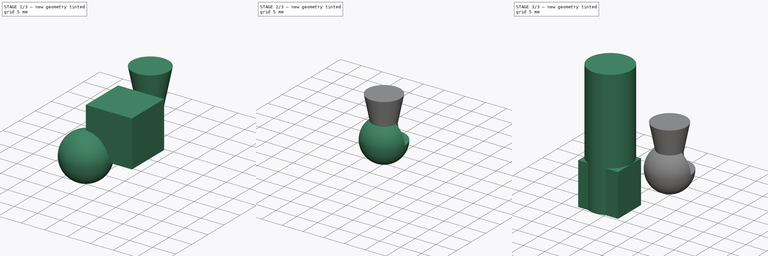
[diagram: build sequence overview — one tinted view per stage of 3, left to right]
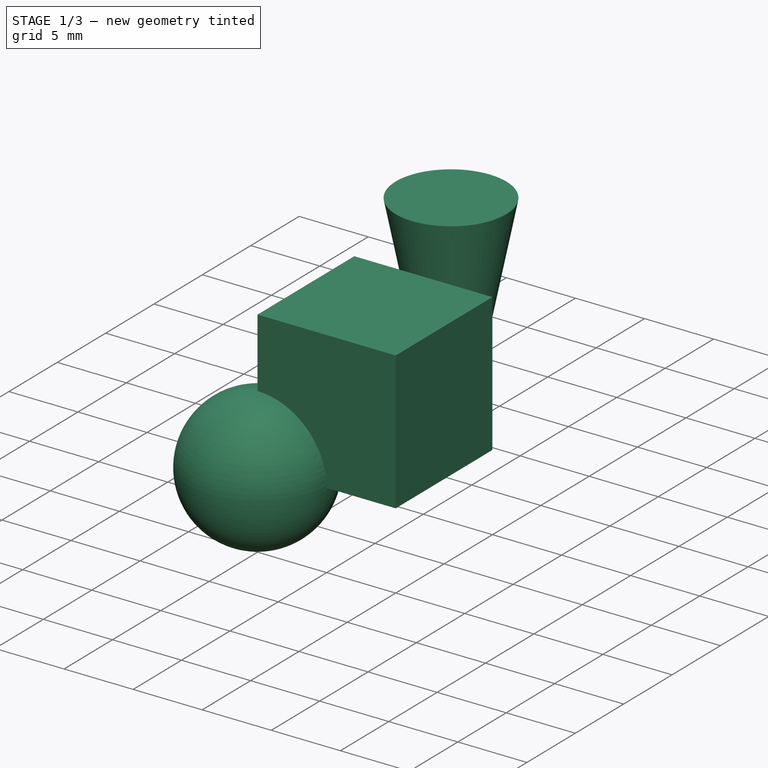
[diagram: stage 1 of 3 — iso view after this stage's code; geometry added in this stage tinted green]
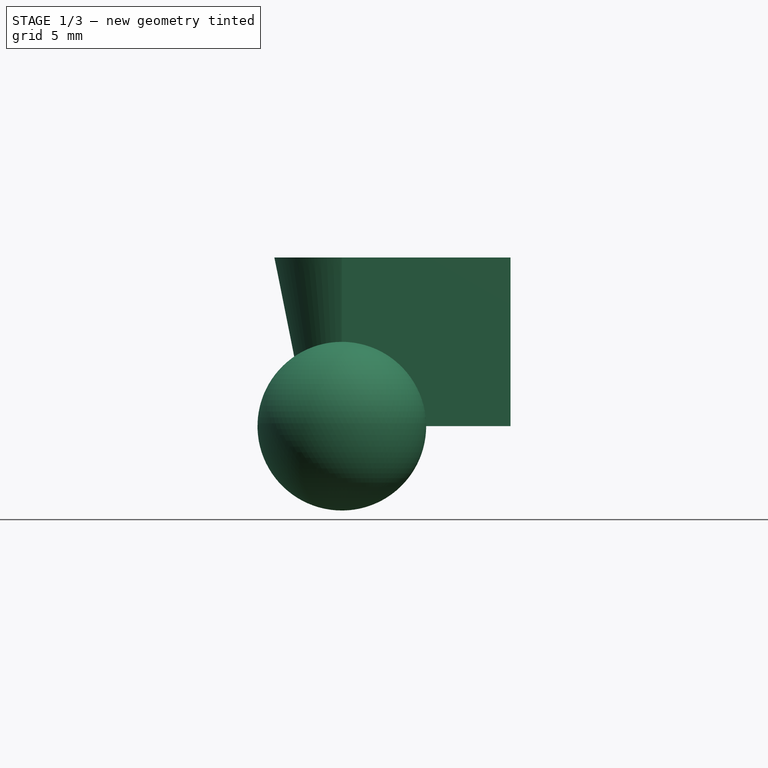
[diagram: stage 1 of 3 — front view after this stage's code; geometry added in this stage tinted green]
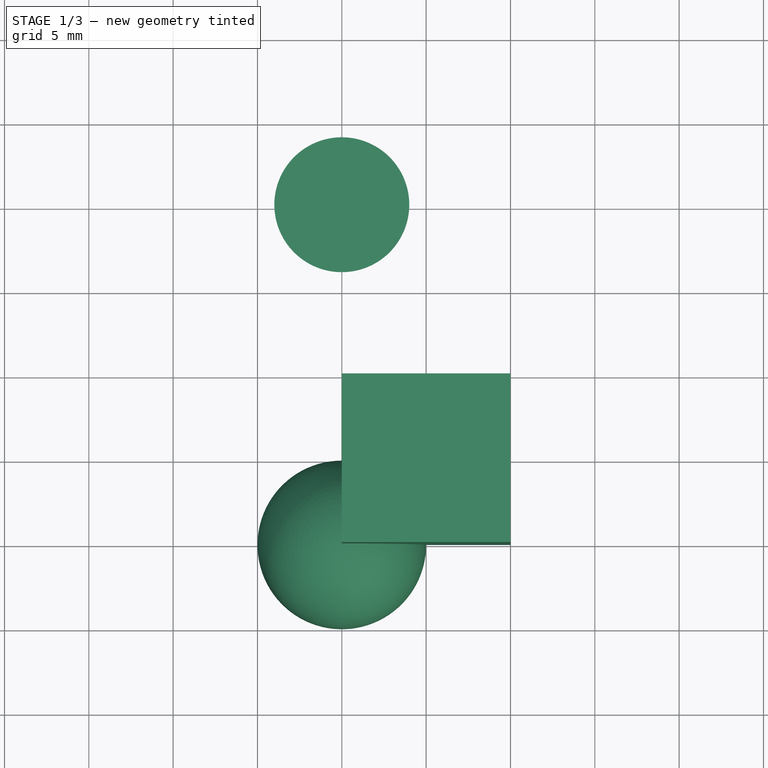
[diagram: stage 1 of 3 — top view after this stage's code; geometry added in this stage tinted green]
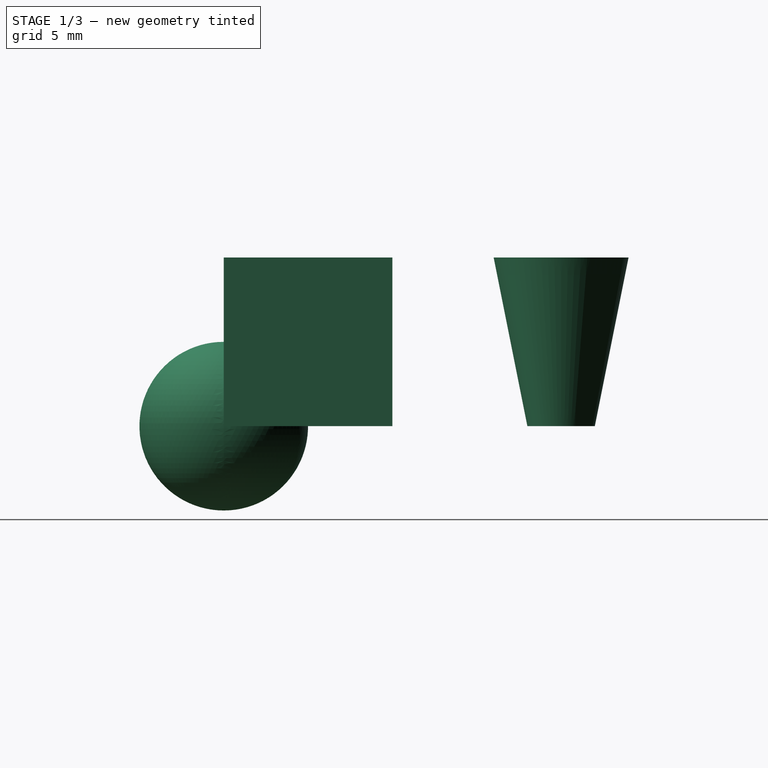
[diagram: stage 1 of 3 — right view after this stage's code; geometry added in this stage tinted green]
FCSTD DOCUMENT  (FreeCAD 0.18R14722 (Git))
Label: PDPCHierarchy_18
License: All rights reserved
LicenseURL: http://en.wikipedia.org/wiki/All_rights_reserved
objects: App::Part×5, Sketcher::SketchObject×3, PartDesign::Pad×3, PartDesign::Body×3, Part::Sphere×1, Part::Box×1, Part::Cut×1, Part::Cone×1, Part::MultiFuse×1
note: 17 computed .brp shape members not serialized (recipe doc carries the construction recipe); baked Part::Feature solids carry a one-line shape summary decoded from their .brp

FEATURE [PartDesign::Body] Body001
  Group = -> [Sketch001,Pad001]
  Origin = -> Origin002
  Tip = -> Pad001
FEATURE [App::Part] Part001  label="child1"
  Group = -> [Body001]
  License = CC BY 3.0
  LicenseURL = http://creativecommons.org/licenses/by/3.0/
  Origin = -> Origin003
FEATURE [App::Part] Part002  label="parent"
  Group = -> [Part001,Part]
  License = CC BY 3.0
  LicenseURL = http://creativecommons.org/licenses/by/3.0/
  Origin = -> Origin004
FEATURE [Part::Sphere] Sphere
  Angle1 = -90
  Angle2 = 90
  Angle3 = 360
  AttacherType = Attacher::AttachEngine3D
  Radius = 5
FEATURE [Part::Box] Box  label="Cube"
  AttacherType = Attacher::AttachEngine3D
  Height = 10
  Length = 10
  Width = 10
FEATURE [PartDesign::Body] Body002  label="1030Pin"
  Group = -> [Sketch002,Pad002]
  Origin = -> Origin005
  Tip = -> Pad002
FEATURE [Part::Cone] Cone
  Angle = 360
  AttacherType = Attacher::AttachEngine3D
  Height = 10
  Placement = pos=(0,20,0) rot=(0,0,1;0rad)
  Radius1 = 2
  Radius2 = 4
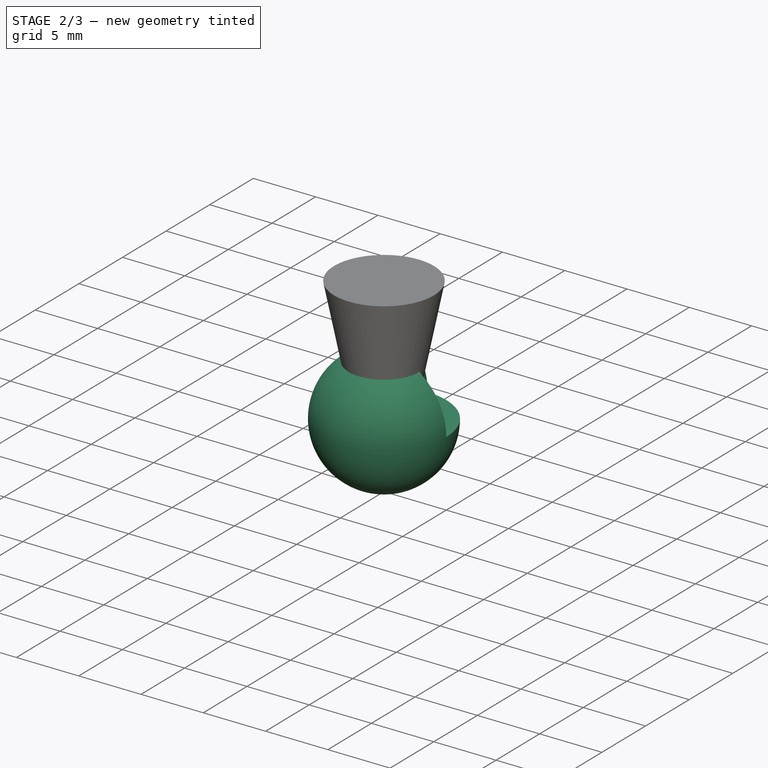
[diagram: stage 2 of 3 — iso view after this stage's code; geometry added in this stage tinted green]
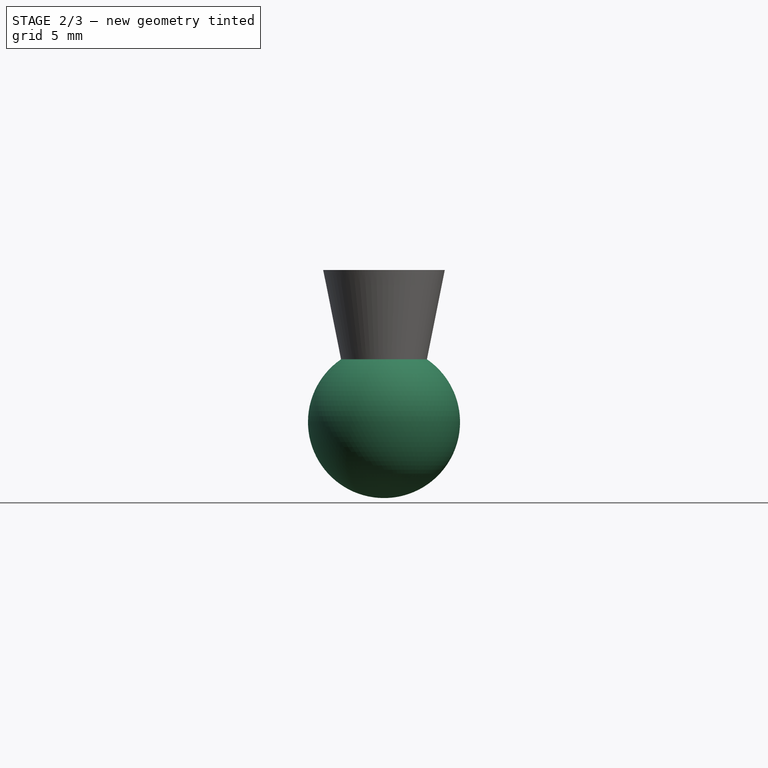
[diagram: stage 2 of 3 — front view after this stage's code; geometry added in this stage tinted green]
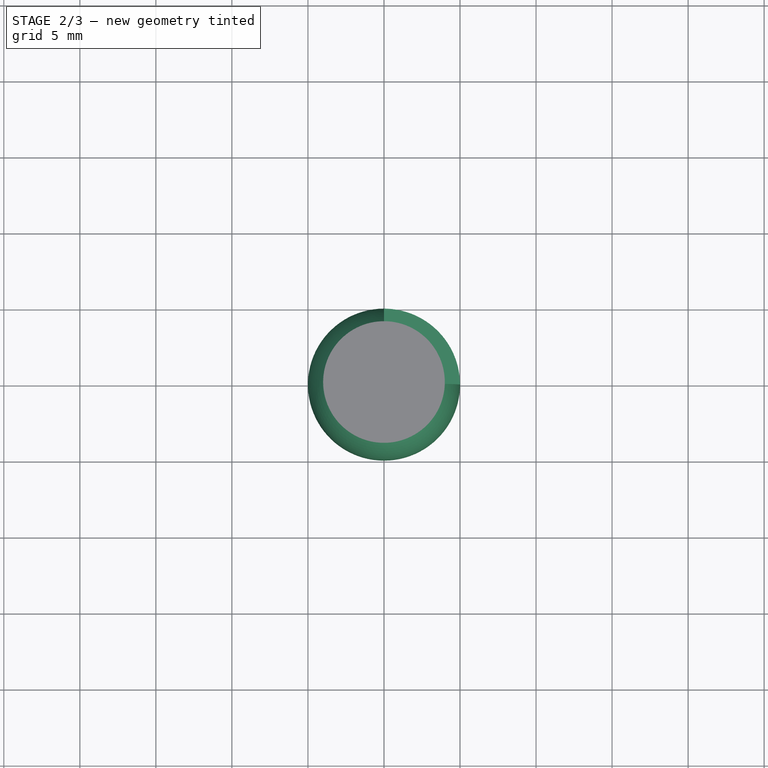
[diagram: stage 2 of 3 — top view after this stage's code; geometry added in this stage tinted green]
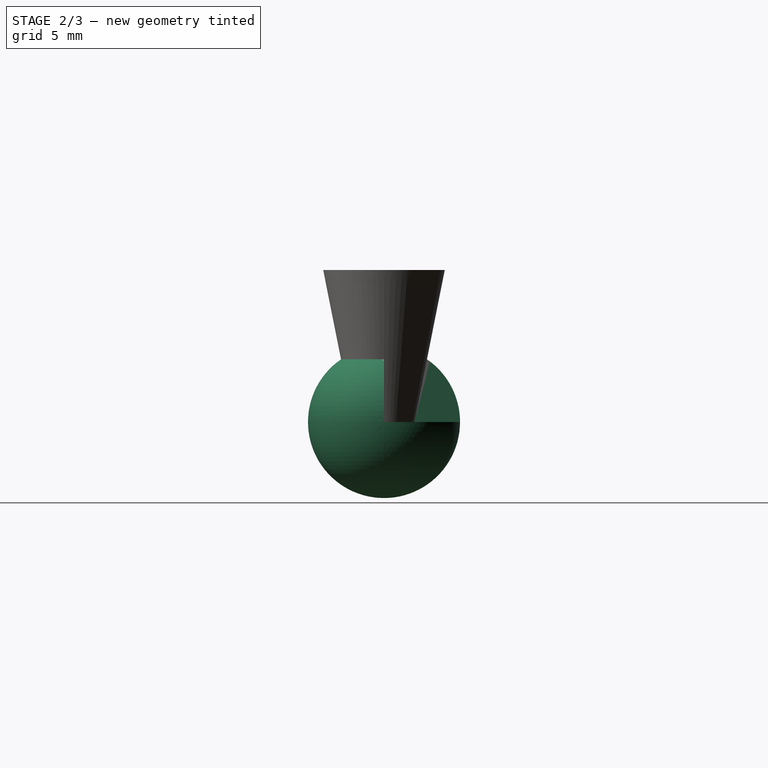
[diagram: stage 2 of 3 — right view after this stage's code; geometry added in this stage tinted green]
FEATURE [Part::Cut] Cut
  Base = -> Sphere
  Placement = pos=(0,20,0) rot=(0,0,1;0rad)
  Tool = -> Box
FEATURE [Part::MultiFuse] Fusion
  Shapes = -> [Cone,Cut]
FEATURE [App::Part] Part003
  Group = -> [Sphere,Box,Cut,Cone,Fusion]
  License = CC BY 3.0
  LicenseURL = http://creativecommons.org/licenses/by/3.0/
  Origin = -> Origin006
FEATURE [App::Part] Part004
  Group = -> [Part003]
  License = CC BY 3.0
  LicenseURL = http://creativecommons.org/licenses/by/3.0/
  Origin = -> Origin007
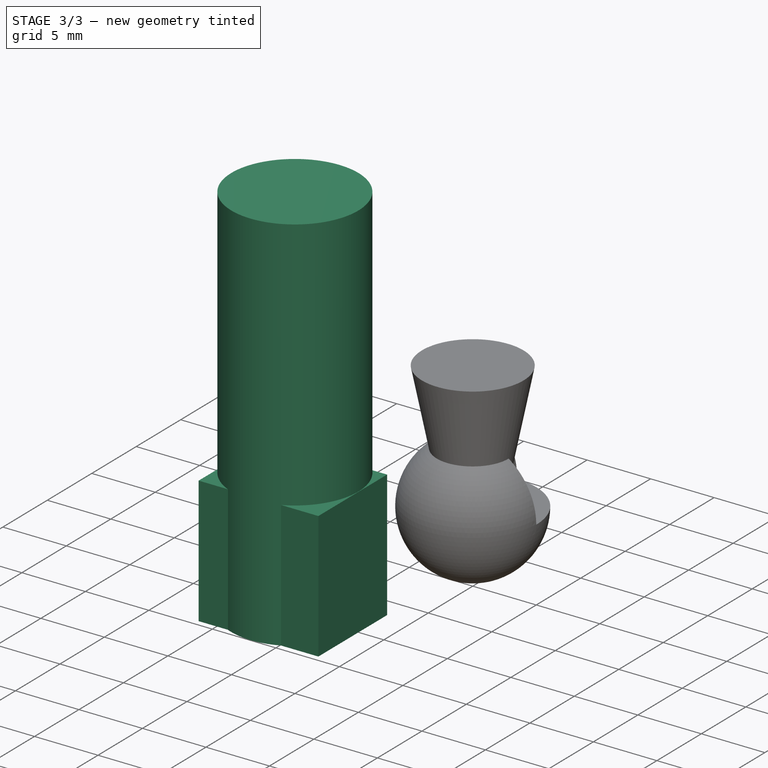
[diagram: stage 3 of 3 — iso view after this stage's code; geometry added in this stage tinted green]
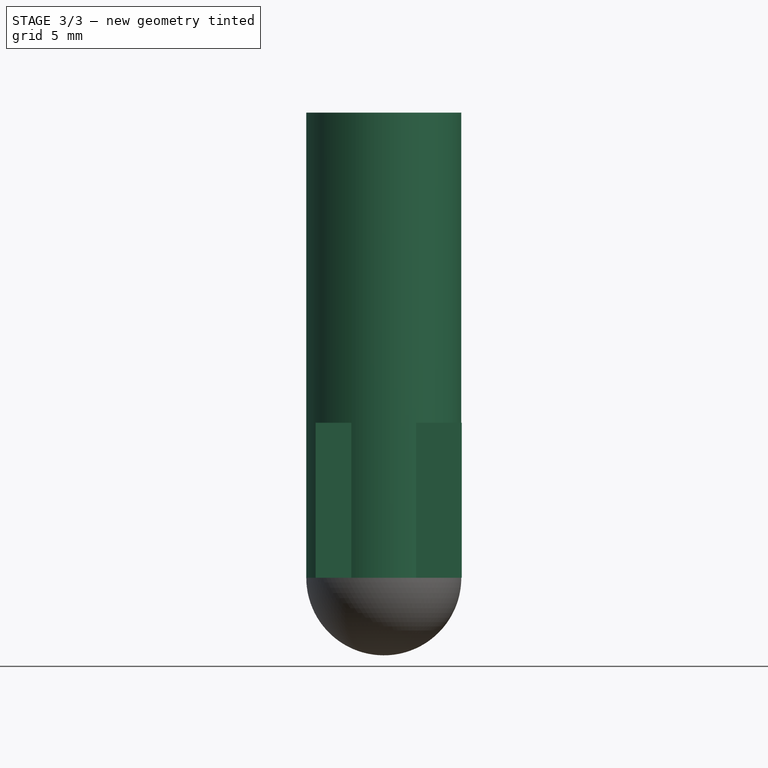
[diagram: stage 3 of 3 — front view after this stage's code; geometry added in this stage tinted green]
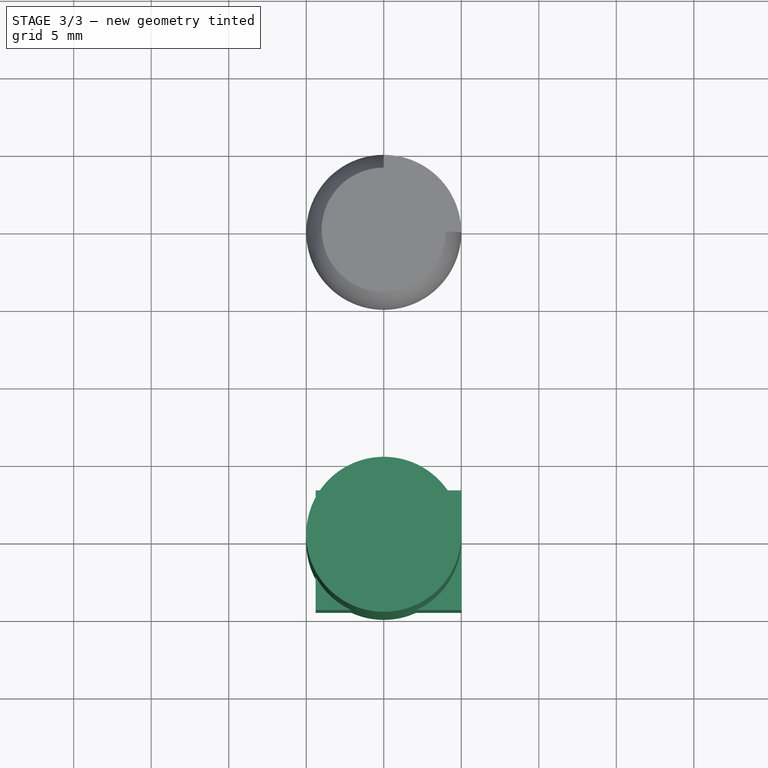
[diagram: stage 3 of 3 — top view after this stage's code; geometry added in this stage tinted green]
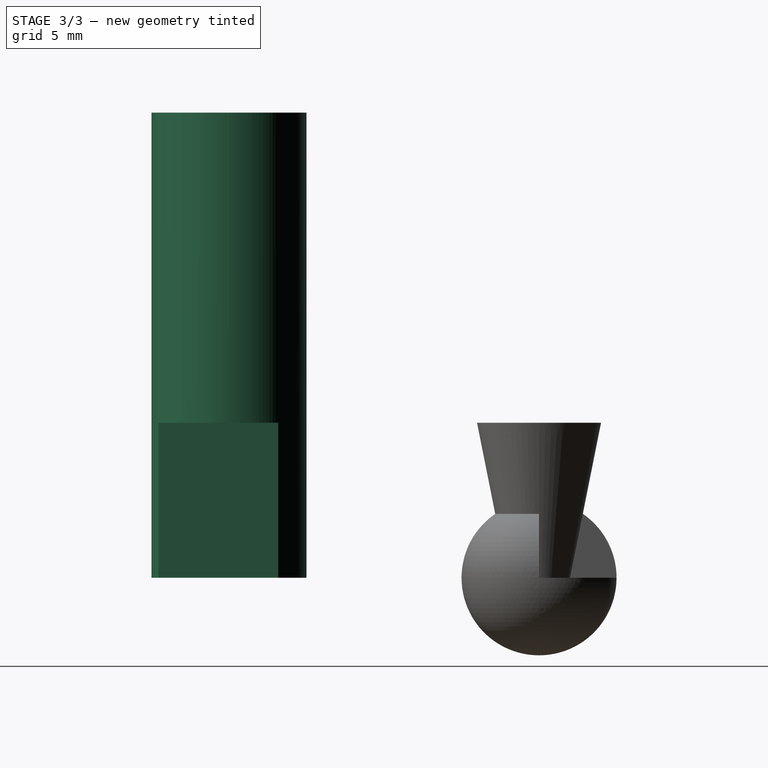
[diagram: stage 3 of 3 — right view after this stage's code; geometry added in this stage tinted green]
FEATURE [Sketcher::SketchObject] Sketch
  MapMode = 5
  Support = -> [XY_Plane]
  sketch-geometry (4):
    g0: LineSegment StartX=-4.39381 StartY=3.18392 StartZ=0 EndX=5.03059 EndY=3.18392 EndZ=0
    g1: LineSegment StartX=5.03059 StartY=3.18392 StartZ=0 EndX=5.03059 EndY=-4.54239 EndZ=0
    g2: LineSegment StartX=5.03059 StartY=-4.54239 StartZ=0 EndX=-4.39381 EndY=-4.54239 EndZ=0
    g3: LineSegment StartX=-4.39381 StartY=-4.54239 StartZ=0 EndX=-4.39381 EndY=3.18392 EndZ=0
  constraints (12):
    c: Coincident(g0,g1)
    c: Coincident(g1,g2)
    c: Coincident(g2,g3)
    c: Coincident(g3,g0)
    c: Horizontal(g0)
    c: Horizontal(g2)
    c: Vertical(g1)
    c: Vertical(g3)
    c: DistanceX(g0) = -4.39381
    c: DistanceY(g0) = 3.18392
    c: DistanceY(g2) = -4.54239
    c: DistanceX(g0) = 5.03059
FEATURE [PartDesign::Pad] Pad
  Length = 10
  Length2 = 100
  Profile = -> Sketch
  Refine = true
  Type = 0
FEATURE [PartDesign::Body] Body
  Group = -> [Sketch,Pad]
  Origin = -> Origin
  Tip = -> Pad
FEATURE [App::Part] Part  label="child2"
  Group = -> [Body]
  License = CC BY 3.0
  LicenseURL = http://creativecommons.org/licenses/by/3.0/
  Origin = -> Origin001
  Placement = pos=(20,0,0) rot=(0,0,1;0rad)
FEATURE [Sketcher::SketchObject] Sketch001
  MapMode = 5
  Support = -> [XY_Plane002]
  sketch-geometry (4):
    g0: LineSegment StartX=-4.39381 StartY=3.18392 StartZ=0 EndX=5.03059 EndY=3.18392 EndZ=0
    g1: LineSegment StartX=5.03059 StartY=3.18392 StartZ=0 EndX=5.03059 EndY=-4.54239 EndZ=0
    g2: LineSegment StartX=5.03059 StartY=-4.54239 StartZ=0 EndX=-4.39381 EndY=-4.54239 EndZ=0
    g3: LineSegment StartX=-4.39381 StartY=-4.54239 StartZ=0 EndX=-4.39381 EndY=3.18392 EndZ=0
  constraints (12):
    c: Coincident(g0,g1)
    c: Coincident(g1,g2)
    c: Coincident(g2,g3)
    c: Coincident(g3,g0)
    c: Horizontal(g0)
    c: Horizontal(g2)
    c: Vertical(g1)
    c: Vertical(g3)
    c: DistanceX(g0) = -4.39381
    c: DistanceY(g0) = 3.18392
    c: DistanceY(g2) = -4.54239
    c: DistanceX(g0) = 5.03059
FEATURE [PartDesign::Pad] Pad001
  Length = 10
  Length2 = 100
  Profile = -> Sketch001
  Refine = true
  Type = 0
FEATURE [Sketcher::SketchObject] Sketch002
  MapMode = 5
  Support = -> [XY_Plane005]
  sketch-geometry (1):
    g0: Circle CenterX=0 CenterY=0 CenterZ=0 NormalX=0 NormalY=0 NormalZ=1 AngleXU=0 Radius=5
  constraints (2):
    c: Coincident(g0,g-1)
    c: Radius(g0) = 5
FEATURE [PartDesign::Pad] Pad002
  Length = 30
  Length2 = 100
  Profile = -> Sketch002
  Type = 0
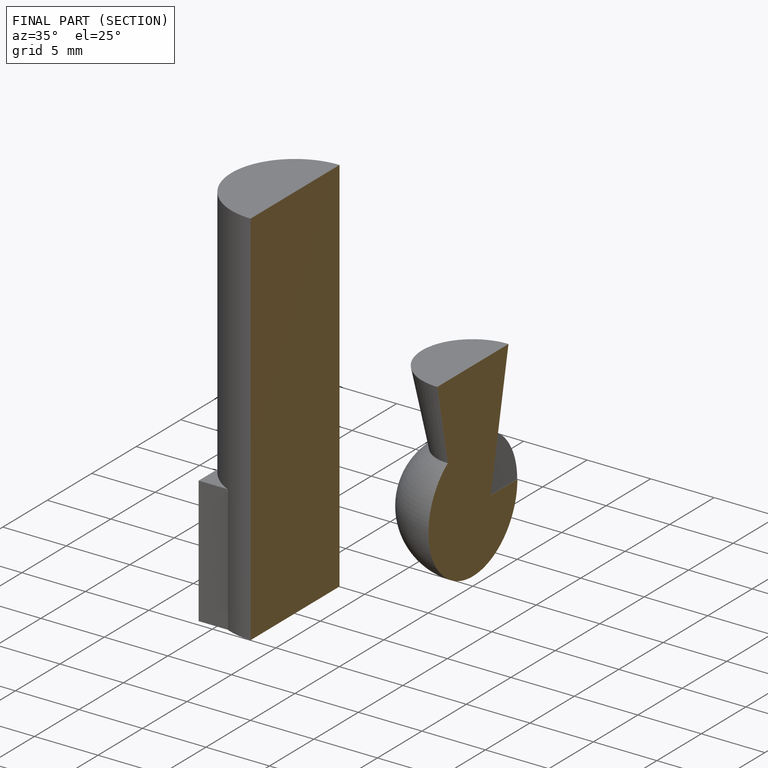
[diagram: finished part — half-section view (interior)]
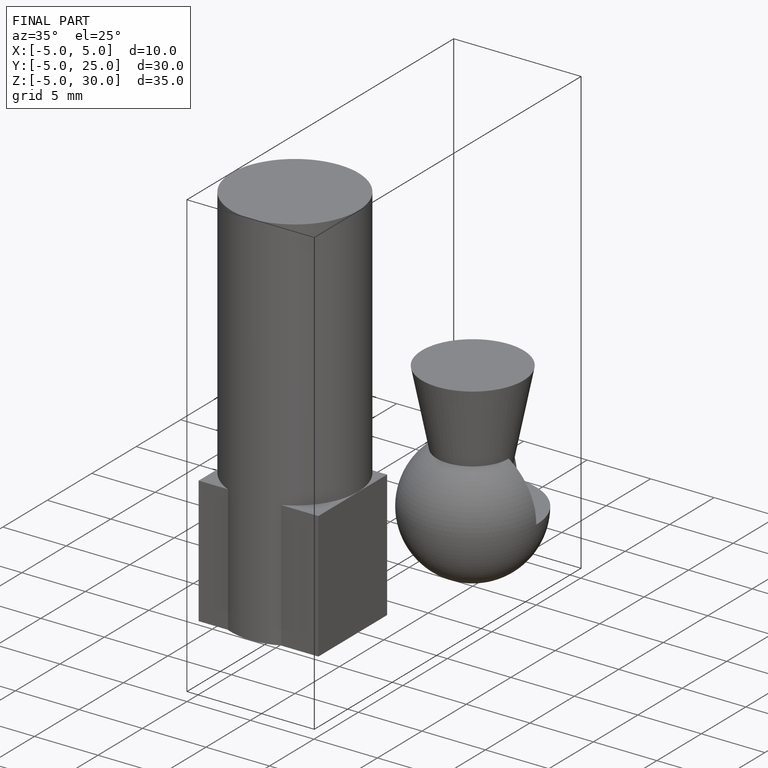
[diagram: finished part — iso view with bounding-box wireframe]
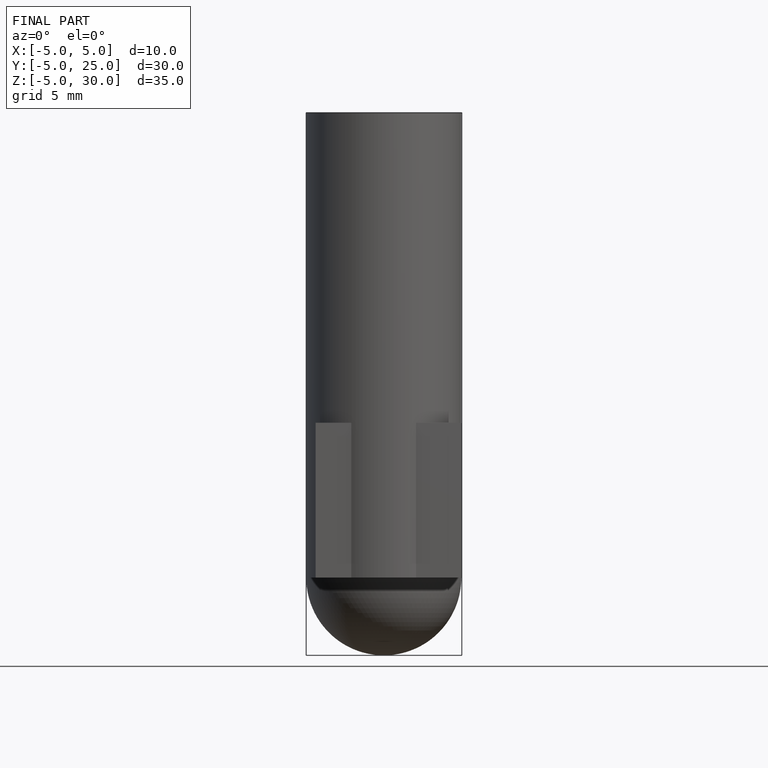
[diagram: finished part — front view with bounding-box wireframe]
